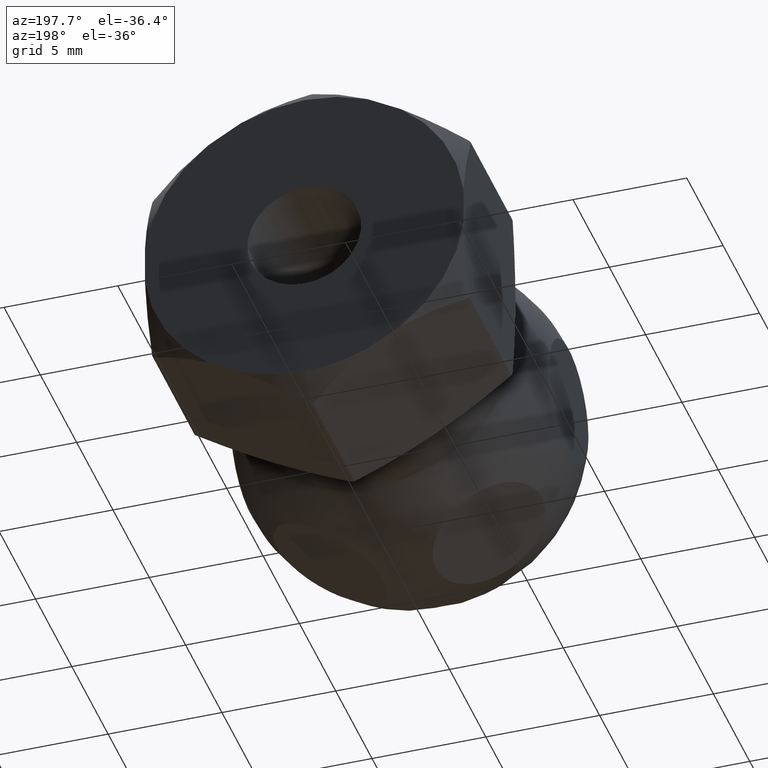
[diagram: clean part render]
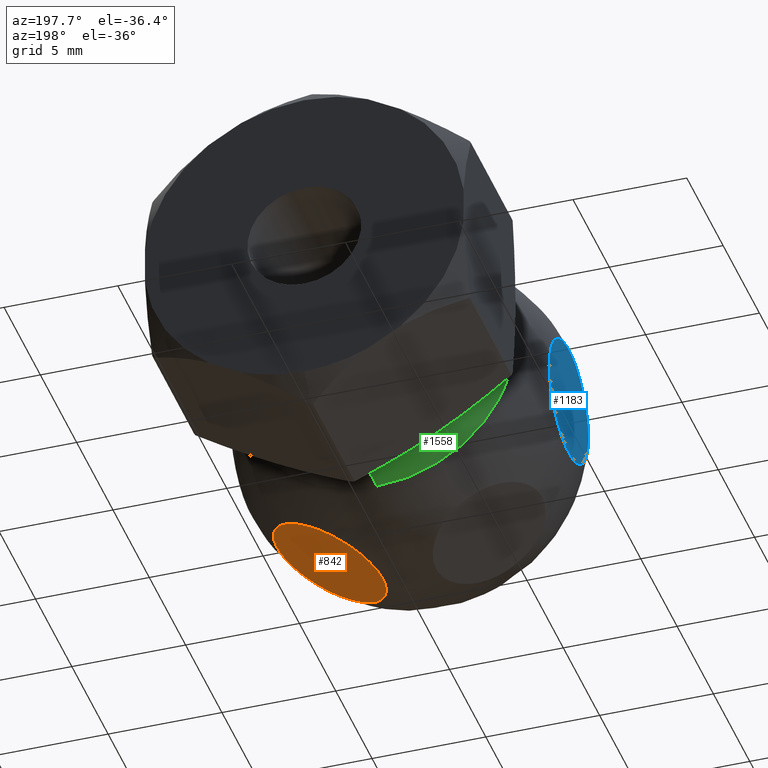
[diagram: same view with three faces highlighted in distinct colors, each labeled with its STEP entity id]
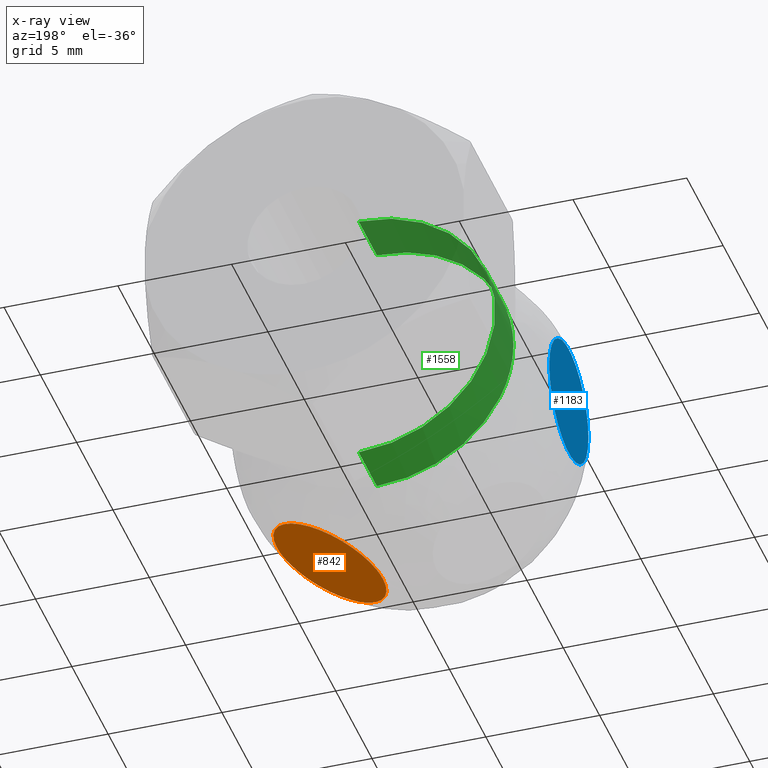
[diagram: x-ray of the same camera — body ghosted, the three highlighted faces saturated]
A machine part, auxiliary view with three faces highlighted in distinct colors.
The next image is the same camera in x-ray (body ghosted, the three faces saturated) — at least one of them is partly hidden behind the body in this view.
Their STEP definitions:

[orange] entity #842 — the highlighted planar face has unit normal (0.5, 0, -0.866).
#59 = EDGE_CURVE ( 'NONE', #1245, #1120, #769, .T. ) ;
#68 = CARTESIAN_POINT ( 'NONE',  ( 4.920966619165928300, -16.64209833491199600, -5.241782366406154900 ) ) ;
#75 = CARTESIAN_POINT ( 'NONE',  ( 2.894116494483254700, -17.10613344649632200, -6.411984831498677400 ) ) ;
#77 = CARTESIAN_POINT ( 'NONE',  ( 5.256393307732382800, -12.72021743974795200, -5.048123677468923100 ) ) ;
#82 = CARTESIAN_POINT ( 'NONE',  ( 1.645129229518332000, -16.14120742061127700, -7.133087965140631100 ) ) ;
#85 = CARTESIAN_POINT ( 'NONE',  ( 1.743455678206887700, -12.72021294207762500, -7.076319163521831400 ) ) ;
#98 = CARTESIAN_POINT ( 'NONE',  ( 4.105883505516741700, -11.89386655350373100, -5.712370821483397700 ) ) ;
#192 = CARTESIAN_POINT ( 'NONE',  ( 5.595291900981835400, -15.69478983350464100, -4.852460483428368200 ) ) ;
#197 = CARTESIAN_POINT ( 'NONE',  ( 4.669046540216483800, -12.16352602497827100, -5.387228491801882200 ) ) ;
#201 = CARTESIAN_POINT ( 'NONE',  ( 5.041276014380692100, -12.47182999717319500, -5.172321704692864200 ) ) ;
#207 = CARTESIAN_POINT ( 'NONE',  ( 1.646713656070779800, -12.85646742650838100, -7.132173196044065300 ) ) ;
#212 = CARTESIAN_POINT ( 'NONE',  ( 1.168155236727800300, -14.32213134119723100, -7.408469028274693000 ) ) ;
#218 = CARTESIAN_POINT ( 'NONE',  ( 5.816402041824789000, -14.85585785150306600, -4.724802484092128600 ) ) ;
#307 = CARTESIAN_POINT ( 'NONE',  ( 1.404330987774840000, -15.69388912208631300, -7.272112894831623800 ) ) ;
#321 = CARTESIAN_POINT ( 'NONE',  ( 2.330953459783428700, -16.83647397502186400, -6.737127161180230100 ) ) ;
#324 = CARTESIAN_POINT ( 'NONE',  ( 5.831844763272204800, -14.32213134119724000, -4.715886624707446000 ) ) ;
#328 = CARTESIAN_POINT ( 'NONE',  ( 2.076099823611981900, -16.63962958720751600, -6.884266976627767300 ) ) ;
#332 = CARTESIAN_POINT ( 'NONE',  ( 4.252782564650792600, -11.94555869672087100, -5.627558610148682300 ) ) ;
#334 = CARTESIAN_POINT ( 'NONE',  ( 1.183597958175203000, -14.14414214849702000, -7.399553168890022000 ) ) ;
#343 = ORIENTED_EDGE ( 'NONE', *, *, #59, .F. ) ;
#398 = EDGE_CURVE ( 'NONE', #1120, #1245, #1085, .T. ) ;
#406 = ORIENTED_EDGE ( 'NONE', *, *, #398, .F. ) ;
#407 = DIRECTION ( 'NONE',  ( -0.8660254037844386000, 0.0000000000000000000, -0.5000000000000001100 ) ) ;
#455 = CARTESIAN_POINT ( 'NONE',  ( 5.816731334248268900, -14.14723472057608900, -4.724612367022789500 ) ) ;
#461 = CARTESIAN_POINT ( 'NONE',  ( 2.750666586977049000, -11.94413742889249600, -6.494805674212654100 ) ) ;
#515 = CARTESIAN_POINT ( 'NONE',  ( 7.000000000000000000, -22.00000000000001800, -4.041451884327381400 ) ) ;
#517 = EDGE_LOOP ( 'NONE', ( #343, #406 ) ) ;
#552 = CARTESIAN_POINT ( 'NONE',  ( 2.747217435349209600, -17.05444130327915900, -6.496797042833464700 ) ) ;
#557 = CARTESIAN_POINT ( 'NONE',  ( 1.168155236727800700, -14.50000000000001100, -7.408469028274695700 ) ) ;
#562 = CARTESIAN_POINT ( 'NONE',  ( 1.183268665751738200, -14.85276527942394500, -7.399743285959348600 ) ) ;
#570 = CARTESIAN_POINT ( 'NONE',  ( 2.896017741217942600, -11.89335554103057300, -6.410887146184653500 ) ) ;
#576 = CARTESIAN_POINT ( 'NONE',  ( 1.404708099016530600, -13.30521016649494600, -7.271895169553752100 ) ) ;
#582 = CARTESIAN_POINT ( 'NONE',  ( 1.958723985619300800, -16.52817000282682600, -6.952033948289282800 ) ) ;
#671 = CARTESIAN_POINT ( 'NONE',  ( 5.038763933452155900, -16.53088978535404200, -5.173772055293179400 ) ) ;
#685 = CARTESIAN_POINT ( 'NONE',  ( 1.168155236727801200, -14.67786865880279000, -7.408469028274698300 ) ) ;
#690 = CARTESIAN_POINT ( 'NONE',  ( 5.354870770481708700, -12.85879257938881700, -4.991267687841491900 ) ) ;
#694 = CARTESIAN_POINT ( 'NONE',  ( 1.743606692267588400, -16.27978256025203100, -7.076231975513239000 ) ) ;
#697 = CARTESIAN_POINT ( 'NONE',  ( 5.595669012225149800, -13.30611087791370100, -4.852242758150528500 ) ) ;
#714 = CARTESIAN_POINT ( 'NONE',  ( 5.831844763272202100, -14.67786865880278500, -4.715886624707444200 ) ) ;
#769 = B_SPLINE_CURVE_WITH_KNOTS ( 'NONE', 3,
 ( #1284, #685, #562, #910, #1259, #307, #1391, #82, #694, #582, #328, #321, #803, #552, #75, #1408, #1133, #1527, #1520, #1499, #1384, #794, #921, #68, #671, #1151, #917, #790, #192, #1140, #1144, #218, #714, #1059 ),
 .UNSPECIFIED., .F., .F.,
 ( 4, 2, 2, 2, 2, 2, 2, 2, 2, 2, 2, 2, 2, 2, 2, 2, 4 ),
 ( 0.0000000000000000000, 0.0005260322240135703400, 0.001052064448027140700, 0.001578096672040711000, 0.002104128896054281400, 0.002630161120067851700, 0.003156193344081422100, 0.003682225568094992000, 0.004208257792108562700, 0.004734290016122133500, 0.005260322240135704300, 0.005786354464149275100, 0.006312386688162846700, 0.006838418912176417500, 0.007364451136189989100, 0.007890483360203559900, 0.008416515584217132400 ),
 .UNSPECIFIED. ) ;
#790 = CARTESIAN_POINT ( 'NONE',  ( 5.522265316623070000, -15.85204179021902600, -4.894622401565896100 ) ) ;
#794 = CARTESIAN_POINT ( 'NONE',  ( 4.531638425218846000, -16.92116991976355000, -5.466561103984612500 ) ) ;
#798 = CARTESIAN_POINT ( 'NONE',  ( 1.243360968433268700, -13.79926247573299300, -7.365048978829943100 ) ) ;
#803 = CARTESIAN_POINT ( 'NONE',  ( 2.466667209849648900, -16.92013297523536200, -6.658772791046845700 ) ) ;
#805 = CARTESIAN_POINT ( 'NONE',  ( 5.524057736955372300, -13.15146637626375000, -4.893587547204544900 ) ) ;
#812 = CARTESIAN_POINT ( 'NONE',  ( 3.804914934442243300, -11.82466317118230100, -5.886135107010874300 ) ) ;
#817 = CARTESIAN_POINT ( 'NONE',  ( 1.961236066547846500, -12.46911021464598300, -6.950583597688956900 ) ) ;
#842 = ADVANCED_FACE ( 'NONE', ( #989 ), #874, .T. ) ;
#874 = PLANE ( 'NONE',  #1369 ) ;
#910 = CARTESIAN_POINT ( 'NONE',  ( 1.242486156901446500, -15.19685754649610300, -7.365554051503330000 ) ) ;
#917 = CARTESIAN_POINT ( 'NONE',  ( 5.353286343929225300, -16.14353257349165100, -4.992182456938075500 ) ) ;
#921 = CARTESIAN_POINT ( 'NONE',  ( 4.668224288454368300, -16.83690310795396900, -5.387703219078086500 ) ) ;
#924 = CARTESIAN_POINT ( 'NONE',  ( 1.477734683376936900, -13.14795820978099700, -7.229733251416242900 ) ) ;
#937 = CARTESIAN_POINT ( 'NONE',  ( 3.653633318186526600, -11.80753685756653600, -5.973477588879589500 ) ) ;
#989 = FACE_OUTER_BOUND ( 'NONE', #517, .T. ) ;
#994 = DIRECTION ( 'NONE',  ( 0.5000000000000001100, 0.0000000000000000000, -0.8660254037844386000 ) ) ;
#1047 = CARTESIAN_POINT ( 'NONE',  ( 4.533332790150354600, -12.07986702476466300, -5.465582861935304000 ) ) ;
#1055 = CARTESIAN_POINT ( 'NONE',  ( 5.757513843098570800, -13.80314245350396800, -4.758801601478802800 ) ) ;
#1059 = CARTESIAN_POINT ( 'NONE',  ( 5.831844763272203000, -14.50000000000001200, -4.715886624707444200 ) ) ;
#1085 = B_SPLINE_CURVE_WITH_KNOTS ( 'NONE', 3,
 ( #1515, #324, #455, #1055, #1509, #697, #805, #690, #77, #201, #1281, #197, #1047, #332, #98, #812, #937, #1154, #1161, #570, #461, #1531, #1287, #1411, #817, #85, #207, #924, #576, #1165, #798, #334, #212, #557 ),
 .UNSPECIFIED., .F., .F.,
 ( 4, 2, 2, 2, 2, 2, 2, 2, 2, 2, 2, 2, 2, 2, 2, 2, 4 ),
 ( 0.008416515584217132400, 0.008942547808230704900, 0.009468580032244277400, 0.009994612256257849900, 0.01052064448027142200, 0.01104667670428499500, 0.01157270892829856900, 0.01209874115231214200, 0.01262477337632571300, 0.01315080560033928500, 0.01367683782435285600, 0.01420287004836642800, 0.01472890227237999900, 0.01525493449639357200, 0.01578096672040714400, 0.01630699894442071500, 0.01683303116843428600 ),
 .UNSPECIFIED. ) ;
#1120 = VERTEX_POINT ( 'NONE', #1321 ) ;
#1133 = CARTESIAN_POINT ( 'NONE',  ( 3.346366681813481000, -17.19246314243349600, -6.150878064102556700 ) ) ;
#1140 = CARTESIAN_POINT ( 'NONE',  ( 5.712489381091876900, -15.36854740692743900, -4.784796486738487800 ) ) ;
#1144 = CARTESIAN_POINT ( 'NONE',  ( 5.756639031566728600, -15.20073752426703900, -4.759306674152202100 ) ) ;
#1151 = CARTESIAN_POINT ( 'NONE',  ( 5.256544321793115600, -16.27978705792239100, -5.048036489460303100 ) ) ;
#1154 = CARTESIAN_POINT ( 'NONE',  ( 3.349518103694456400, -11.80729956478301200, -6.149058589831248000 ) ) ;
#1161 = CARTESIAN_POINT ( 'NONE',  ( 3.195071700278090200, -11.82474056022992100, -6.238228262419055700 ) ) ;
#1165 = CARTESIAN_POINT ( 'NONE',  ( 1.287510618906499300, -13.63145259307215600, -7.339559166243623700 ) ) ;
#1245 = VERTEX_POINT ( 'NONE', #1372 ) ;
#1259 = CARTESIAN_POINT ( 'NONE',  ( 1.287308248802592600, -15.36783427746756600, -7.339676004678554300 ) ) ;
#1281 = CARTESIAN_POINT ( 'NONE',  ( 4.923900176387922700, -12.36037041279260200, -5.240088676354345900 ) ) ;
#1284 = CARTESIAN_POINT ( 'NONE',  ( 1.168155236727800700, -14.50000000000001100, -7.408469028274695700 ) ) ;
#1287 = CARTESIAN_POINT ( 'NONE',  ( 2.331775711545638800, -12.16309689204606100, -6.736652433904057900 ) ) ;
#1321 = CARTESIAN_POINT ( 'NONE',  ( 5.831844763272203000, -14.50000000000001200, -4.715886624707444200 ) ) ;
#1369 = AXIS2_PLACEMENT_3D ( 'NONE', #515, #994, #407 ) ;
#1372 = CARTESIAN_POINT ( 'NONE',  ( 1.168155236727800700, -14.50000000000001100, -7.408469028274695700 ) ) ;
#1384 = CARTESIAN_POINT ( 'NONE',  ( 4.249333413022957200, -17.05586257110752200, -5.629549978769491100 ) ) ;
#1391 = CARTESIAN_POINT ( 'NONE',  ( 1.475942263044629100, -15.84853362373628400, -7.230768105777597700 ) ) ;
#1408 = CARTESIAN_POINT ( 'NONE',  ( 3.195085065557751400, -17.17533682881774100, -6.238220545971199000 ) ) ;
#1411 = CARTESIAN_POINT ( 'NONE',  ( 2.079033380834079300, -12.35790166508803300, -6.882573286575988500 ) ) ;
#1499 = CARTESIAN_POINT ( 'NONE',  ( 4.103982258782064500, -17.10664445896945600, -5.713468506797487300 ) ) ;
#1509 = CARTESIAN_POINT ( 'NONE',  ( 5.712691751197379400, -13.63216572253238100, -4.784679648303600700 ) ) ;
#1515 = CARTESIAN_POINT ( 'NONE',  ( 5.831844763272203000, -14.50000000000001200, -4.715886624707444200 ) ) ;
#1520 = CARTESIAN_POINT ( 'NONE',  ( 3.804928299721916900, -17.17525943977010500, -5.886127390563086000 ) ) ;
#1527 = CARTESIAN_POINT ( 'NONE',  ( 3.650481896305553000, -17.19270043521701300, -5.975297063150898100 ) ) ;
#1531 = CARTESIAN_POINT ( 'NONE',  ( 2.468361574781159400, -12.07883008023646800, -6.657794548997529200 ) ) ;

[blue] entity #1183 — the highlighted planar face has unit normal (-1, 0, -0).
#22 = FACE_OUTER_BOUND ( 'NONE', #549, .T. ) ;
#451 = CARTESIAN_POINT ( 'NONE',  ( -7.000000000000000900, -11.80741759643276500, 3.297462421969118700E-016 ) ) ;
#497 = DIRECTION ( 'NONE',  ( -1.000000000000000000, 0.0000000000000000000, -3.219245568722482900E-016 ) ) ;
#513 = CARTESIAN_POINT ( 'NONE',  ( -7.000000000000000000, -22.00000000000001800, -4.041451884327383200 ) ) ;
#522 = CARTESIAN_POINT ( 'NONE',  ( -7.000000000000000900, -17.19258240356726100, 0.0000000000000000000 ) ) ;
#549 = EDGE_LOOP ( 'NONE', ( #1517, #662 ) ) ;
#568 = VERTEX_POINT ( 'NONE', #451 ) ;
#577 = AXIS2_PLACEMENT_3D ( 'NONE', #1460, #749, #1343 ) ;
#662 = ORIENTED_EDGE ( 'NONE', *, *, #737, .F. ) ;
#737 = EDGE_CURVE ( 'NONE', #568, #931, #1300, .T. ) ;
#749 = DIRECTION ( 'NONE',  ( 1.000000000000000000, -0.0000000000000000000, -0.0000000000000000000 ) ) ;
#804 = DIRECTION ( 'NONE',  ( 0.0000000000000000000, 0.0000000000000000000, 1.000000000000000000 ) ) ;
#807 = AXIS2_PLACEMENT_3D ( 'NONE', #1513, #1023, #804 ) ;
#931 = VERTEX_POINT ( 'NONE', #522 ) ;
#978 = DIRECTION ( 'NONE',  ( -3.219245568722482900E-016, 0.0000000000000000000, 1.000000000000000000 ) ) ;
#1023 = DIRECTION ( 'NONE',  ( 1.000000000000000000, -0.0000000000000000000, -0.0000000000000000000 ) ) ;
#1183 = ADVANCED_FACE ( 'NONE', ( #22 ), #1214, .T. ) ;
#1214 = PLANE ( 'NONE',  #1331 ) ;
#1300 = CIRCLE ( 'NONE', #577, 2.692582403567247900 ) ;
#1313 = CIRCLE ( 'NONE', #807, 2.692582403567247900 ) ;
#1331 = AXIS2_PLACEMENT_3D ( 'NONE', #513, #497, #978 ) ;
#1343 = DIRECTION ( 'NONE',  ( 0.0000000000000000000, 0.0000000000000000000, 1.000000000000000000 ) ) ;
#1406 = EDGE_CURVE ( 'NONE', #931, #568, #1313, .T. ) ;
#1460 = CARTESIAN_POINT ( 'NONE',  ( -7.000000000000000900, -14.50000000000001200, 0.0000000000000000000 ) ) ;
#1513 = CARTESIAN_POINT ( 'NONE',  ( -7.000000000000000900, -14.50000000000001200, 0.0000000000000000000 ) ) ;
#1517 = ORIENTED_EDGE ( 'NONE', *, *, #1406, .F. ) ;

[green] entity #1558 — the highlighted cylindrical surface (partial cylindrical patch) has radius 6 mm, axis along (0, 1, 0).
#12 = CARTESIAN_POINT ( 'NONE',  ( 7.347880794884105900E-016, -9.999999999999998200, -5.999999999999988500 ) ) ;
#52 = AXIS2_PLACEMENT_3D ( 'NONE', #1519, #199, #940 ) ;
#60 = VECTOR ( 'NONE', #1014, 1000.000000000000000 ) ;
#69 = VERTEX_POINT ( 'NONE', #1264 ) ;
#157 = AXIS2_PLACEMENT_3D ( 'NONE', #1008, #792, #305 ) ;
#186 = CARTESIAN_POINT ( 'NONE',  ( 0.0000000000000000000, -7.500000000000000000, 5.999999999999988500 ) ) ;
#199 = DIRECTION ( 'NONE',  ( -0.0000000000000000000, -1.000000000000000000, -0.0000000000000000000 ) ) ;
#305 = DIRECTION ( 'NONE',  ( 0.0000000000000000000, 0.0000000000000000000, 1.000000000000000000 ) ) ;
#325 = EDGE_CURVE ( 'NONE', #605, #1222, #450, .T. ) ;
#344 = LINE ( 'NONE', #1357, #713 ) ;
#373 = AXIS2_PLACEMENT_3D ( 'NONE', #1046, #1182, #727 ) ;
#436 = CARTESIAN_POINT ( 'NONE',  ( 7.347880794884105900E-016, 8.561167148425877100, -5.999999999999988500 ) ) ;
#450 = CIRCLE ( 'NONE', #157, 5.999999999999988500 ) ;
#471 = EDGE_CURVE ( 'NONE', #1222, #772, #1432, .T. ) ;
#472 = VERTEX_POINT ( 'NONE', #186 ) ;
#512 = EDGE_CURVE ( 'NONE', #69, #605, #1530, .T. ) ;
#605 = VERTEX_POINT ( 'NONE', #1416 ) ;
#643 = CARTESIAN_POINT ( 'NONE',  ( 0.0000000000000000000, -7.500000000000000000, 0.0000000000000000000 ) ) ;
#713 = VECTOR ( 'NONE', #1482, 1000.000000000000000 ) ;
#726 = CYLINDRICAL_SURFACE ( 'NONE', #373, 5.999999999999988500 ) ;
#727 = DIRECTION ( 'NONE',  ( 0.0000000000000000000, 0.0000000000000000000, 1.000000000000000000 ) ) ;
#732 = CIRCLE ( 'NONE', #969, 5.999999999999988500 ) ;
#772 = VERTEX_POINT ( 'NONE', #880 ) ;
#792 = DIRECTION ( 'NONE',  ( -0.0000000000000000000, -1.000000000000000000, -0.0000000000000000000 ) ) ;
#880 = CARTESIAN_POINT ( 'NONE',  ( 8.603143764010152600E-016, -7.500000000000000000, -5.999999999999988500 ) ) ;
#916 = ORIENTED_EDGE ( 'NONE', *, *, #325, .F. ) ;
#920 = ORIENTED_EDGE ( 'NONE', *, *, #471, .F. ) ;
#940 = DIRECTION ( 'NONE',  ( 0.0000000000000000000, 0.0000000000000000000, 1.000000000000000000 ) ) ;
#943 = EDGE_CURVE ( 'NONE', #472, #772, #732, .T. ) ;
#969 = AXIS2_PLACEMENT_3D ( 'NONE', #643, #1118, #1378 ) ;
#1008 = CARTESIAN_POINT ( 'NONE',  ( 0.0000000000000000000, -9.999999999999998200, 0.0000000000000000000 ) ) ;
#1014 = DIRECTION ( 'NONE',  ( 0.0000000000000000000, 1.000000000000000000, 0.0000000000000000000 ) ) ;
#1035 = FACE_OUTER_BOUND ( 'NONE', #1088, .T. ) ;
#1046 = CARTESIAN_POINT ( 'NONE',  ( 0.0000000000000000000, 8.561167148425877100, 0.0000000000000000000 ) ) ;
#1088 = EDGE_LOOP ( 'NONE', ( #920, #916, #1216, #1348, #1266 ) ) ;
#1118 = DIRECTION ( 'NONE',  ( -0.0000000000000000000, -1.000000000000000000, -0.0000000000000000000 ) ) ;
#1182 = DIRECTION ( 'NONE',  ( 0.0000000000000000000, 1.000000000000000000, 0.0000000000000000000 ) ) ;
#1216 = ORIENTED_EDGE ( 'NONE', *, *, #512, .F. ) ;
#1222 = VERTEX_POINT ( 'NONE', #12 ) ;
#1264 = CARTESIAN_POINT ( 'NONE',  ( 0.0000000000000000000, -9.999999999999998200, 5.999999999999988500 ) ) ;
#1266 = ORIENTED_EDGE ( 'NONE', *, *, #943, .T. ) ;
#1271 = EDGE_CURVE ( 'NONE', #69, #472, #344, .T. ) ;
#1348 = ORIENTED_EDGE ( 'NONE', *, *, #1271, .T. ) ;
#1357 = CARTESIAN_POINT ( 'NONE',  ( 0.0000000000000000000, 8.561167148425877100, 5.999999999999988500 ) ) ;
#1378 = DIRECTION ( 'NONE',  ( 0.0000000000000000000, 0.0000000000000000000, 1.000000000000000000 ) ) ;
#1416 = CARTESIAN_POINT ( 'NONE',  ( -5.999999999999989300, -9.999999999999998200, 5.510910596163106300E-016 ) ) ;
#1432 = LINE ( 'NONE', #436, #60 ) ;
#1482 = DIRECTION ( 'NONE',  ( 0.0000000000000000000, 1.000000000000000000, 0.0000000000000000000 ) ) ;
#1519 = CARTESIAN_POINT ( 'NONE',  ( 0.0000000000000000000, -9.999999999999998200, 0.0000000000000000000 ) ) ;
#1530 = CIRCLE ( 'NONE', #52, 5.999999999999988500 ) ;
#1558 = ADVANCED_FACE ( 'NONE', ( #1035 ), #726, .T. ) ;